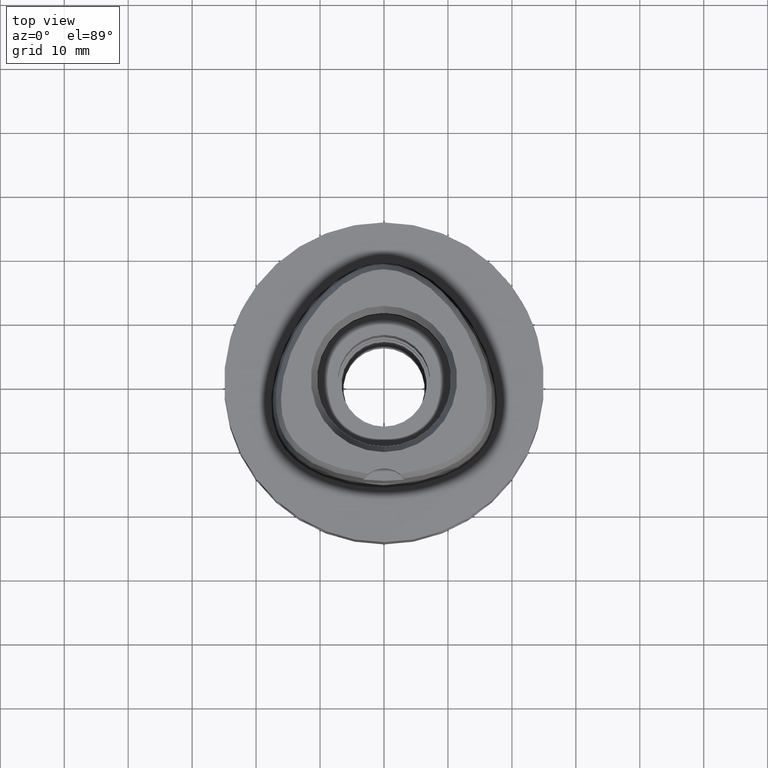
[diagram: clean part render]
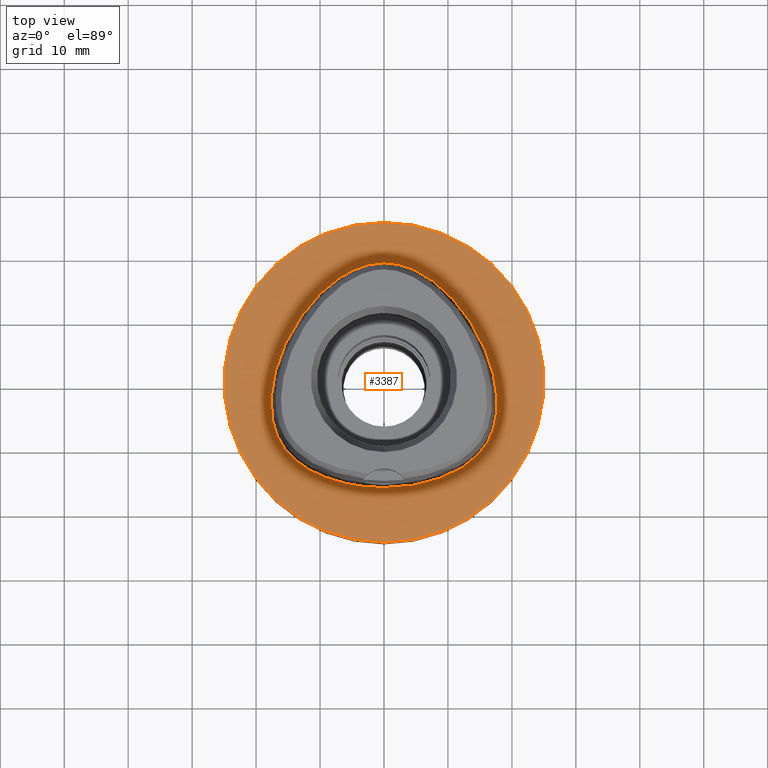
[diagram: same view with one face highlighted and labeled with its STEP entity id]
A machine part, top view. The second image highlights one B-rep face of the part: STEP entity #3387.
In plain terms, the highlighted planar face has unit normal (0, 0, -1).
Its self-contained STEP definition (entity closure, byte-faithful):
#15 = CARTESIAN_POINT ( 'NONE',  ( 1.062471551688000081E-10, 18.69499999997000117, 1.719365390802999774E-13 ) ) ;
#97 = CARTESIAN_POINT ( 'NONE',  ( 0.0000000000000000000, -25.00000000000000000, 0.0000000000000000000 ) ) ;
#142 = AXIS2_PLACEMENT_3D ( 'NONE', #1874, #3355, #2260 ) ;
#212 = CARTESIAN_POINT ( 'NONE',  ( 0.0000000000000000000, 25.00000000000000000, 0.0000000000000000000 ) ) ;
#224 = CARTESIAN_POINT ( 'NONE',  ( -17.56373942187486392, -5.455996092682450005, 2.999364382620488267E-07 ) ) ;
#247 = CARTESIAN_POINT ( 'NONE',  ( -14.78833379853959507, -11.28232909638336601, 2.999364382620488267E-07 ) ) ;
#269 = ORIENTED_EDGE ( 'NONE', *, *, #1407, .F. ) ;
#314 = CARTESIAN_POINT ( 'NONE',  ( 0.0000000000000000000, 1.257283636345000040E-14, 0.0000000000000000000 ) ) ;
#498 = EDGE_LOOP ( 'NONE', ( #3244, #269 ) ) ;
#560 = CARTESIAN_POINT ( 'NONE',  ( -16.66912841452639427, -8.445800778197339653, 2.999364382620488267E-07 ) ) ;
#582 = CARTESIAN_POINT ( 'NONE',  ( -2.040572356122854814, 18.55015624261541873, 2.999364382620488267E-07 ) ) ;
#608 = ORIENTED_EDGE ( 'NONE', *, *, #4009, .F. ) ;
#610 = CARTESIAN_POINT ( 'NONE',  ( -0.6801907853213213784, 18.69499999250595934, 2.999364382620488797E-07 ) ) ;
#698 = CARTESIAN_POINT ( 'NONE',  ( 17.16495051587308041, -7.165908202550113515, 8.060472013698798122E-08 ) ) ;
#713 = CARTESIAN_POINT ( 'NONE',  ( 16.51672824589832800, 3.703437499312346226, 8.060472013698798122E-08 ) ) ;
#789 = CARTESIAN_POINT ( 'NONE',  ( 11.68694516483883739, -13.70394531074277822, 8.060472013698798122E-08 ) ) ;
#921 = CARTESIAN_POINT ( 'NONE',  ( 1.062471551688000081E-10, 18.69499999997000117, 1.719365390802999774E-13 ) ) ;
#943 = CARTESIAN_POINT ( 'NONE',  ( -13.50690093015397863, -12.48264647845250330, 2.999364382620488267E-07 ) ) ;
#1072 = AXIS2_PLACEMENT_3D ( 'NONE', #2177, #4012, #4755 ) ;
#1102 = CARTESIAN_POINT ( 'NONE',  ( 4.728927205949522872, 17.73480468564913437, 8.060472013698798122E-08 ) ) ;
#1351 = CARTESIAN_POINT ( 'NONE',  ( -16.51672824070920598, 3.703437497440698056, 2.999364382620488267E-07 ) ) ;
#1407 = EDGE_CURVE ( 'NONE', #4199, #4743, #4000, .T. ) ;
#1420 = CARTESIAN_POINT ( 'NONE',  ( 15.64884224092913456, -10.21298828006826653, 8.060472013698798122E-08 ) ) ;
#1439 = CARTESIAN_POINT ( 'NONE',  ( 17.56373942732609095, -5.455996093462406549, 8.060472013698798122E-08 ) ) ;
#1700 = CARTESIAN_POINT ( 'NONE',  ( -5.051093166243597388, -16.15562499257228168, 2.999364382620488267E-07 ) ) ;
#1786 = CARTESIAN_POINT ( 'NONE',  ( -3.510844822442999662E-14, -16.45500000000000185, 1.731207769731999880E-13 ) ) ;
#1812 = CARTESIAN_POINT ( 'NONE',  ( -7.967839659554482701, 15.83070311904783622, 2.999364382620488267E-07 ) ) ;
#1829 = CARTESIAN_POINT ( 'NONE',  ( 7.967839662969371517, 15.83070312340009700, 8.060472013698798122E-08 ) ) ;
#1874 = CARTESIAN_POINT ( 'NONE',  ( 0.0000000000000000000, 1.257283636345000040E-14, 0.0000000000000000000 ) ) ;
#2063 = CARTESIAN_POINT ( 'NONE',  ( -8.946741553613584585, -15.03902343041822220, 2.999364382620488267E-07 ) ) ;
#2177 = CARTESIAN_POINT ( 'NONE',  ( 0.0000000000000000000, 1.224646799146999965E-14, 0.0000000000000000000 ) ) ;
#2194 = CARTESIAN_POINT ( 'NONE',  ( 14.38008119514790550, 8.302343748987569327, 8.060472013698798122E-08 ) ) ;
#2219 = CARTESIAN_POINT ( 'NONE',  ( 2.040572357252240732, 18.55015624801769292, 8.060472013698798122E-08 ) ) ;
#2260 = DIRECTION ( 'NONE',  ( 0.0000000000000000000, -1.000000000000000000, 0.0000000000000000000 ) ) ;
#2402 = CARTESIAN_POINT ( 'NONE',  ( -17.71143734809572479, -3.269218750049549094, 2.999364382620488267E-07 ) ) ;
#2462 = DIRECTION ( 'NONE',  ( 0.0000000000000000000, 1.000000000000000000, 0.0000000000000000000 ) ) ;
#2530 = PLANE ( 'NONE',  #1072 ) ;
#2552 = CARTESIAN_POINT ( 'NONE',  ( 8.946741555494178044, -15.03902343559270349, 8.060472013698798122E-08 ) ) ;
#2791 = VERTEX_POINT ( 'NONE', #4444 ) ;
#2824 = CIRCLE ( 'NONE', #3988, 25.00000000000000000 ) ;
#2896 = CARTESIAN_POINT ( 'NONE',  ( 16.20602471788992460, -9.356552733365674612, 8.060472013698798122E-08 ) ) ;
#2920 = CARTESIAN_POINT ( 'NONE',  ( 17.49754712108232724, -0.2285937503537123217, 8.060472013698798122E-08 ) ) ;
#2946 = FACE_OUTER_BOUND ( 'NONE', #498, .T. ) ;
#2954 = B_SPLINE_CURVE_WITH_KNOTS ( 'NONE', 3,
 ( #1786, #4107, #2990, #2552, #789, #4028, #3632, #1420, #2896, #4368, #698, #1439, #4416, #2920, #713, #2194, #3676, #1829, #1102, #2219, #3704, #15 ),
 .UNSPECIFIED., .F., .F.,
 ( 4, 1, 1, 1, 1, 1, 1, 1, 1, 1, 1, 1, 1, 1, 1, 1, 1, 1, 1, 4 ),
 ( 0.0000000000000000000, 0.08333333333324000058, 0.1666666666665000129, 0.2083333333331000015, 0.2499999999996999900, 0.2916666666664000096, 0.3124999999996999622, 0.3333333333328999948, 0.3541666666663000340, 0.3749999999995999866, 0.4166666666663000340, 0.4583333333328000192, 0.4999999999994999555, 0.5833333333326999881, 0.6666666666660000518, 0.7499999999991999733, 0.8333333333324000058, 0.9166666666657000695, 0.9583333333322999747, 1.000000000000000000 ),
 .UNSPECIFIED. ) ;
#2990 = CARTESIAN_POINT ( 'NONE',  ( 5.051093167216465396, -16.15562499800590857, 8.060472013698798122E-08 ) ) ;
#3151 = CARTESIAN_POINT ( 'NONE',  ( -15.64884223648147987, -10.21298827682700860, 2.999364382620488267E-07 ) ) ;
#3173 = CARTESIAN_POINT ( 'NONE',  ( -1.683697722084410486, -16.45499999249881640, 2.999364382620488267E-07 ) ) ;
#3244 = ORIENTED_EDGE ( 'NONE', *, *, #4716, .F. ) ;
#3279 = FACE_BOUND ( 'NONE', #4449, .T. ) ;
#3355 = DIRECTION ( 'NONE',  ( 0.0000000000000000000, 0.0000000000000000000, -1.000000000000000000 ) ) ;
#3387 = ADVANCED_FACE ( 'NONE', ( #2946, #3279 ), #2530, .F. ) ;
#3441 = EDGE_CURVE ( 'NONE', #2791, #4339, #2954, .T. ) ;
#3515 = CARTESIAN_POINT ( 'NONE',  ( -16.20602471313181425, -9.356552730618071578, 2.999364382620488267E-07 ) ) ;
#3545 = CARTESIAN_POINT ( 'NONE',  ( -4.728927203593612738, 17.73480468064706983, 2.999364382620488267E-07 ) ) ;
#3632 = CARTESIAN_POINT ( 'NONE',  ( 14.78833380252457985, -11.28232910017027990, 8.060472013698798122E-08 ) ) ;
#3676 = CARTESIAN_POINT ( 'NONE',  ( 11.46563507868070353, 12.45218749870124952, 8.060472013698798122E-08 ) ) ;
#3704 = CARTESIAN_POINT ( 'NONE',  ( 0.6801907857368680865, 18.69499999798534517, 8.060472013698798122E-08 ) ) ;
#3750 = ORIENTED_EDGE ( 'NONE', *, *, #3441, .F. ) ;
#3813 = CARTESIAN_POINT ( 'NONE',  ( 1.062471551688000081E-10, 18.69499999997000117, 1.719365390802999774E-13 ) ) ;
#3875 = CARTESIAN_POINT ( 'NONE',  ( -17.16495051059431276, -7.165908200983473364, 2.999364382620488267E-07 ) ) ;
#3988 = AXIS2_PLACEMENT_3D ( 'NONE', #314, #4735, #2462 ) ;
#4000 = CIRCLE ( 'NONE', #142, 25.00000000000000000 ) ;
#4009 = EDGE_CURVE ( 'NONE', #4339, #2791, #4164, .T. ) ;
#4012 = DIRECTION ( 'NONE',  ( 0.0000000000000000000, 0.0000000000000000000, -1.000000000000000000 ) ) ;
#4028 = CARTESIAN_POINT ( 'NONE',  ( 13.50690093354285715, -12.48264648278229139, 8.060472013698798122E-08 ) ) ;
#4107 = CARTESIAN_POINT ( 'NONE',  ( 1.683697722405236075, -16.45499999798570556, 8.060472013698798122E-08 ) ) ;
#4164 = B_SPLINE_CURVE_WITH_KNOTS ( 'NONE', 3,
 ( #921, #610, #582, #3545, #1812, #4767, #4668, #1351, #4649, #2402, #224, #3875, #560, #3515, #3151, #247, #943, #4626, #2063, #1700, #3173, #4286 ),
 .UNSPECIFIED., .F., .F.,
 ( 4, 1, 1, 1, 1, 1, 1, 1, 1, 1, 1, 1, 1, 1, 1, 1, 1, 1, 1, 4 ),
 ( 0.0000000000000000000, 0.04166666666874999786, 0.08333333333533000931, 0.1666666666685000242, 0.2500000000015999979, 0.3333333333348000305, 0.4166666666680000075, 0.5000000000011000090, 0.5416666666677000253, 0.5833333333343000415, 0.6250000000008999468, 0.6458333333340999793, 0.6666666666675000741, 0.6875000000006999956, 0.7083333333340000593, 0.7500000000005999645, 0.7916666666671999808, 0.8333333333336999660, 0.9166666666670000296, 1.000000000000000000 ),
 .UNSPECIFIED. ) ;
#4199 = VERTEX_POINT ( 'NONE', #97 ) ;
#4286 = CARTESIAN_POINT ( 'NONE',  ( -3.510844822442999662E-14, -16.45500000000000185, 1.731207769731999880E-13 ) ) ;
#4339 = VERTEX_POINT ( 'NONE', #3813 ) ;
#4368 = CARTESIAN_POINT ( 'NONE',  ( 16.66912841955289792, -8.445800780429143728, 8.060472013698798122E-08 ) ) ;
#4416 = CARTESIAN_POINT ( 'NONE',  ( 17.71143735359261129, -3.269218750013660912, 8.060472013698798122E-08 ) ) ;
#4444 = CARTESIAN_POINT ( 'NONE',  ( -3.510844822442999662E-14, -16.45500000000000185, 1.731207769731999880E-13 ) ) ;
#4449 = EDGE_LOOP ( 'NONE', ( #608, #3750 ) ) ;
#4626 = CARTESIAN_POINT ( 'NONE',  ( -11.68694516212097589, -13.70394530596757754, 2.999364382620488267E-07 ) ) ;
#4649 = CARTESIAN_POINT ( 'NONE',  ( -17.49754711564729348, -0.2285937513164500445, 2.999364382620488267E-07 ) ) ;
#4668 = CARTESIAN_POINT ( 'NONE',  ( -14.38008119037307075, 8.302343746232303090, 2.999364382620488267E-07 ) ) ;
#4716 = EDGE_CURVE ( 'NONE', #4743, #4199, #2824, .T. ) ;
#4735 = DIRECTION ( 'NONE',  ( 0.0000000000000000000, 0.0000000000000000000, -1.000000000000000000 ) ) ;
#4743 = VERTEX_POINT ( 'NONE', #212 ) ;
#4755 = DIRECTION ( 'NONE',  ( 0.0000000000000000000, -1.000000000000000000, 0.0000000000000000000 ) ) ;
#4767 = CARTESIAN_POINT ( 'NONE',  ( -11.46563507447306662, 12.45218749513647971, 2.999364382620488267E-07 ) ) ;